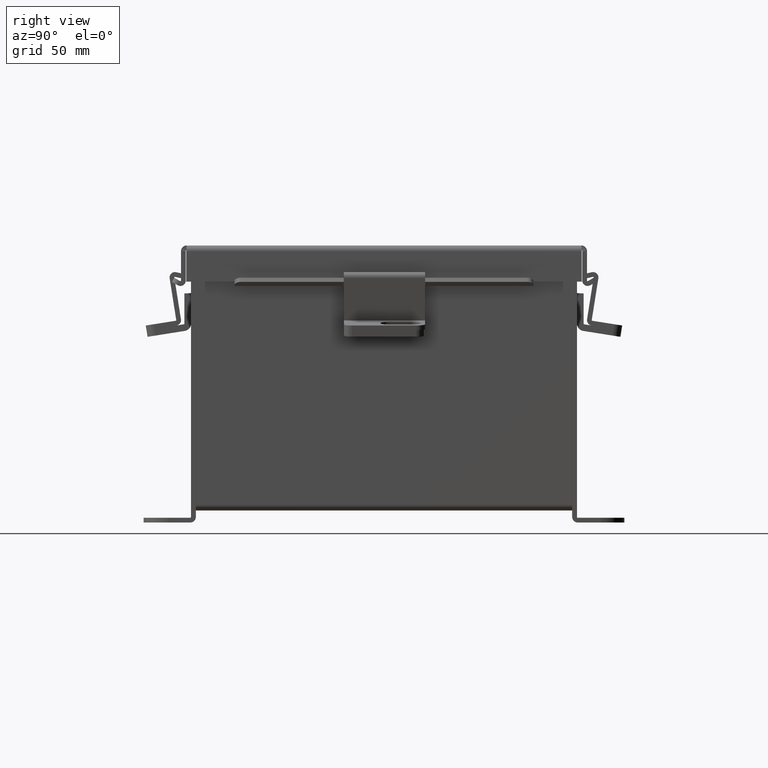
[diagram: clean part render]
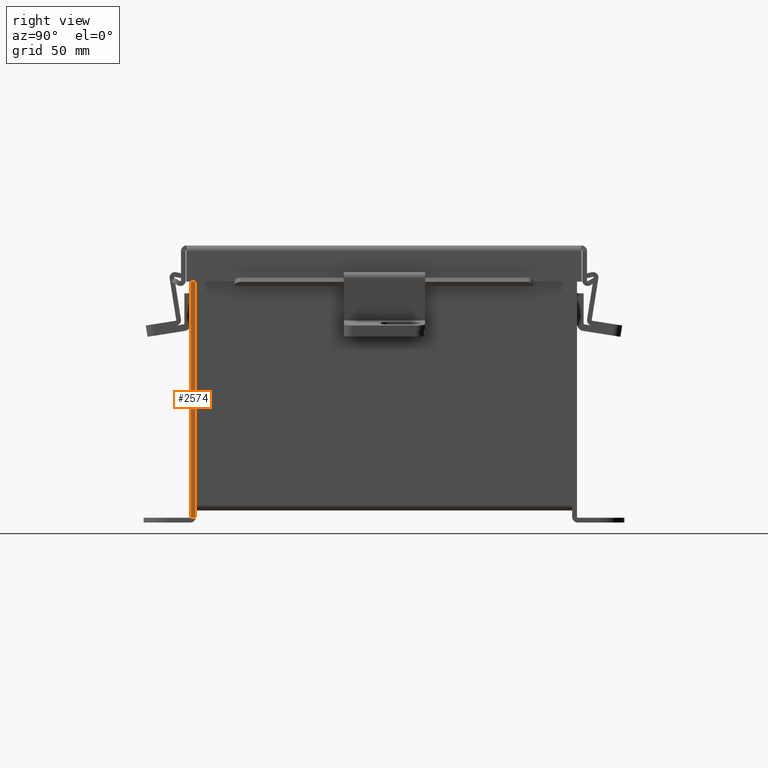
[diagram: same view with one face highlighted and labeled with its STEP entity id]
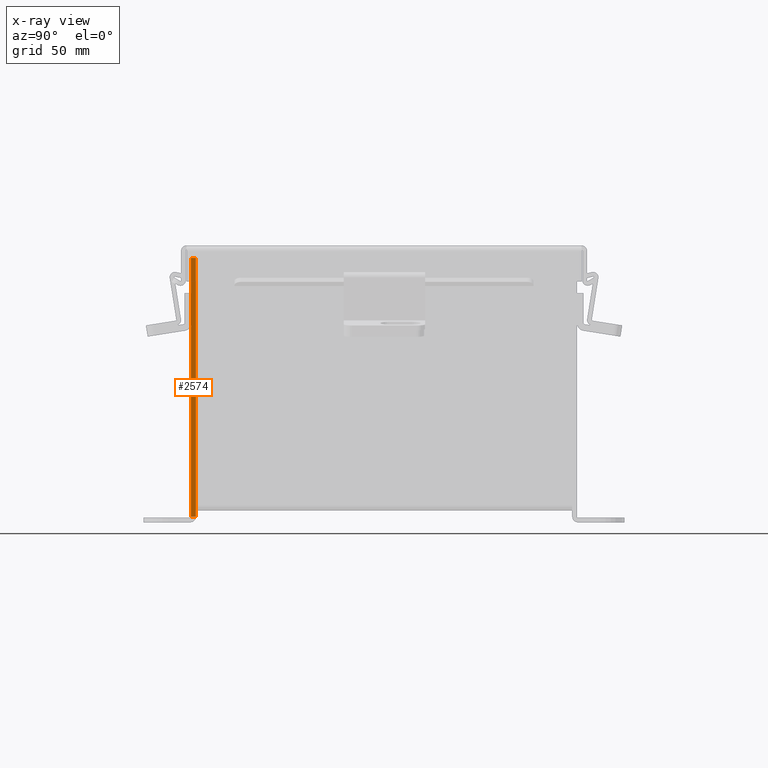
[diagram: x-ray of the same camera — body ghosted, the highlighted face saturated]
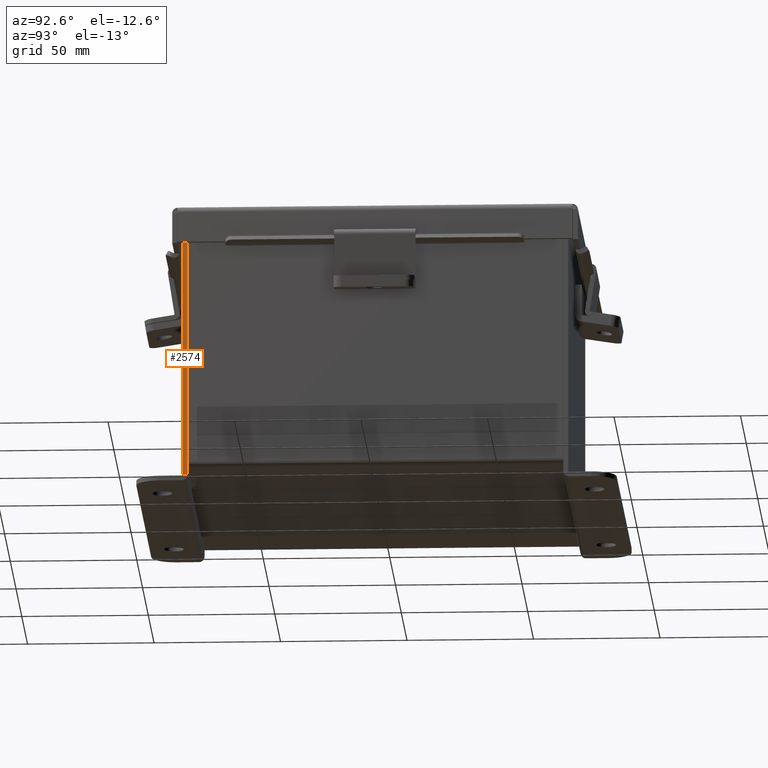
[diagram: same view with one face highlighted and labeled with its STEP entity id]
A machine part, right view. The second image highlights one B-rep face of the part: STEP entity #2574.
The next image is the same camera in x-ray: the body ghosted, the highlighted face saturated — about 0% of this face is hidden behind the body in this view.
A second angle (auxiliary view) of the same face is appended — the face is thin or edge-on in the first view.
In plain terms, the highlighted planar face has unit normal (1, 0, -0).
Its self-contained STEP definition (entity closure, byte-faithful):
#22 = EDGE_CURVE ( 'NONE', #2165, #1330, #2705, .T. ) ;
#504 = VERTEX_POINT ( 'NONE', #7311 ) ;
#953 = CARTESIAN_POINT ( 'NONE',  ( -2.925300000000000500, 0.0000000000000000000, 1.925300000000000700 ) ) ;
#1330 = VERTEX_POINT ( 'NONE', #953 ) ;
#1376 = EDGE_CURVE ( 'NONE', #6928, #1330, #6902, .T. ) ;
#1619 = ORIENTED_EDGE ( 'NONE', *, *, #1376, .F. ) ;
#1993 = PLANE ( 'NONE',  #7763 ) ;
#2117 = DIRECTION ( 'NONE',  ( -1.000000000000000000, -4.910036603141679800E-031, 0.0000000000000000000 ) ) ;
#2165 = VERTEX_POINT ( 'NONE', #4901 ) ;
#2574 = ADVANCED_FACE ( 'NONE', ( #7051 ), #1993, .T. ) ;
#2670 = DIRECTION ( 'NONE',  ( -4.910036603141682400E-031, -1.000000000000000000, 0.0000000000000000000 ) ) ;
#2705 = LINE ( 'NONE', #5735, #6880 ) ;
#2735 = CARTESIAN_POINT ( 'NONE',  ( -2.925300000000004500, -5.463695987328526400E-016, -2.099299999999999100 ) ) ;
#2799 = DIRECTION ( 'NONE',  ( 0.0000000000000000000, 0.0000000000000000000, 1.000000000000000000 ) ) ;
#3028 = CARTESIAN_POINT ( 'NONE',  ( -2.925300000000000500, 0.0000000000000000000, 1.925300000000000700 ) ) ;
#3030 = EDGE_CURVE ( 'NONE', #6928, #504, #6326, .T. ) ;
#4479 = EDGE_LOOP ( 'NONE', ( #1619, #8742, #6305, #5953 ) ) ;
#4851 = LINE ( 'NONE', #8533, #9495 ) ;
#4901 = CARTESIAN_POINT ( 'NONE',  ( -2.925300000000000500, -0.07470000000000015500, 1.925300000000000700 ) ) ;
#5026 = CARTESIAN_POINT ( 'NONE',  ( -2.925300000000000500, -0.07470000000000015500, 1.925300000000000700 ) ) ;
#5735 = CARTESIAN_POINT ( 'NONE',  ( -2.925300000000000500, -0.07470000000000015500, 1.925300000000000700 ) ) ;
#5953 = ORIENTED_EDGE ( 'NONE', *, *, #22, .T. ) ;
#6305 = ORIENTED_EDGE ( 'NONE', *, *, #6413, .T. ) ;
#6326 = LINE ( 'NONE', #7091, #9049 ) ;
#6413 = EDGE_CURVE ( 'NONE', #504, #2165, #4851, .T. ) ;
#6516 = DIRECTION ( 'NONE',  ( 0.0000000000000000000, 0.0000000000000000000, 1.000000000000000000 ) ) ;
#6880 = VECTOR ( 'NONE', #7910, 39.37007874015748100 ) ;
#6902 = LINE ( 'NONE', #3028, #8666 ) ;
#6928 = VERTEX_POINT ( 'NONE', #2735 ) ;
#7051 = FACE_OUTER_BOUND ( 'NONE', #4479, .T. ) ;
#7091 = CARTESIAN_POINT ( 'NONE',  ( -2.925300000000004500, -5.463695987328526400E-016, -2.099299999999999100 ) ) ;
#7311 = CARTESIAN_POINT ( 'NONE',  ( -2.925300000000004500, -0.07470000000000015500, -2.099299999999999100 ) ) ;
#7763 = AXIS2_PLACEMENT_3D ( 'NONE', #5026, #2117, #6516 ) ;
#7910 = DIRECTION ( 'NONE',  ( 4.910036603141679800E-031, 1.000000000000000000, 0.0000000000000000000 ) ) ;
#8228 = DIRECTION ( 'NONE',  ( 0.0000000000000000000, 0.0000000000000000000, 1.000000000000000000 ) ) ;
#8533 = CARTESIAN_POINT ( 'NONE',  ( -2.925300000000000500, -0.07470000000000015500, 1.925300000000000700 ) ) ;
#8666 = VECTOR ( 'NONE', #8228, 39.37007874015748100 ) ;
#8742 = ORIENTED_EDGE ( 'NONE', *, *, #3030, .T. ) ;
#9049 = VECTOR ( 'NONE', #2670, 39.37007874015748100 ) ;
#9495 = VECTOR ( 'NONE', #2799, 39.37007874015748100 ) ;